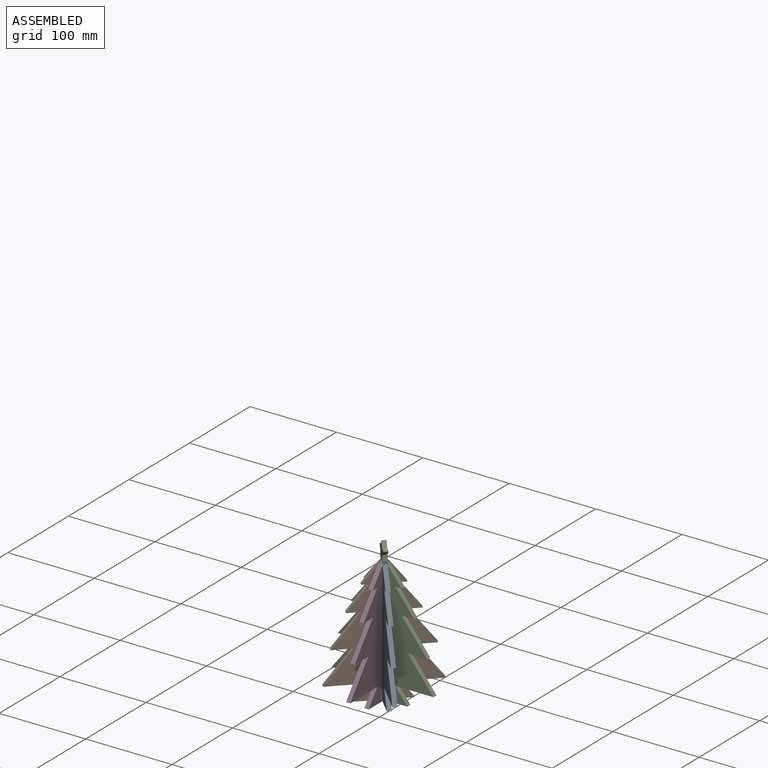
[diagram: assembled view]
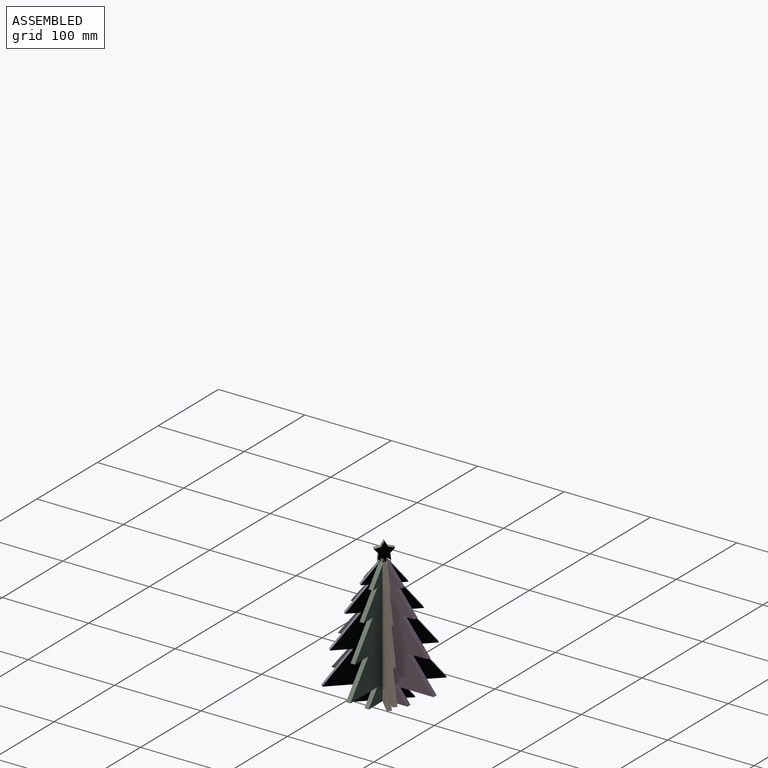
[diagram: assembled view, second angle]
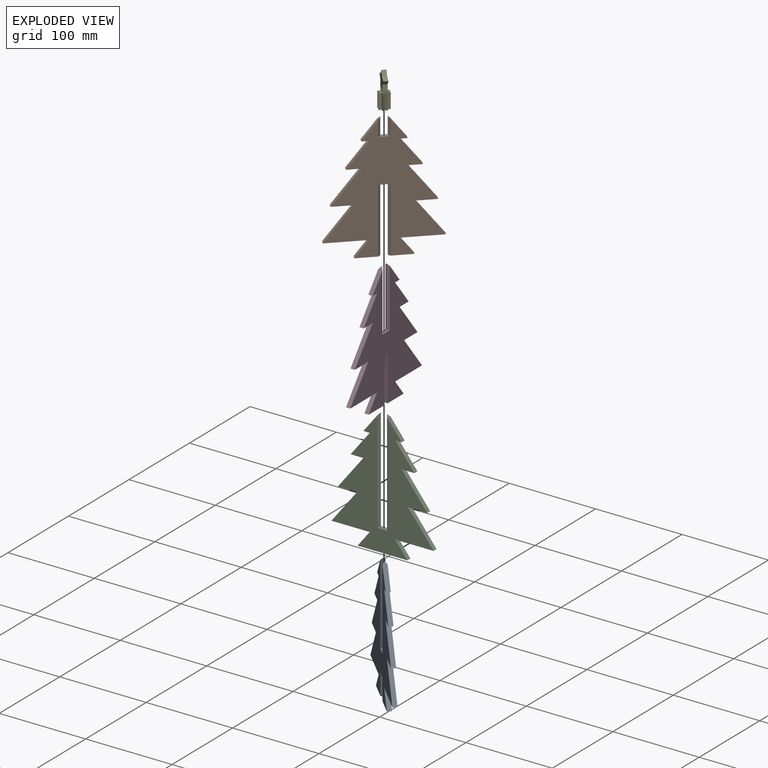
[diagram: exploded view]
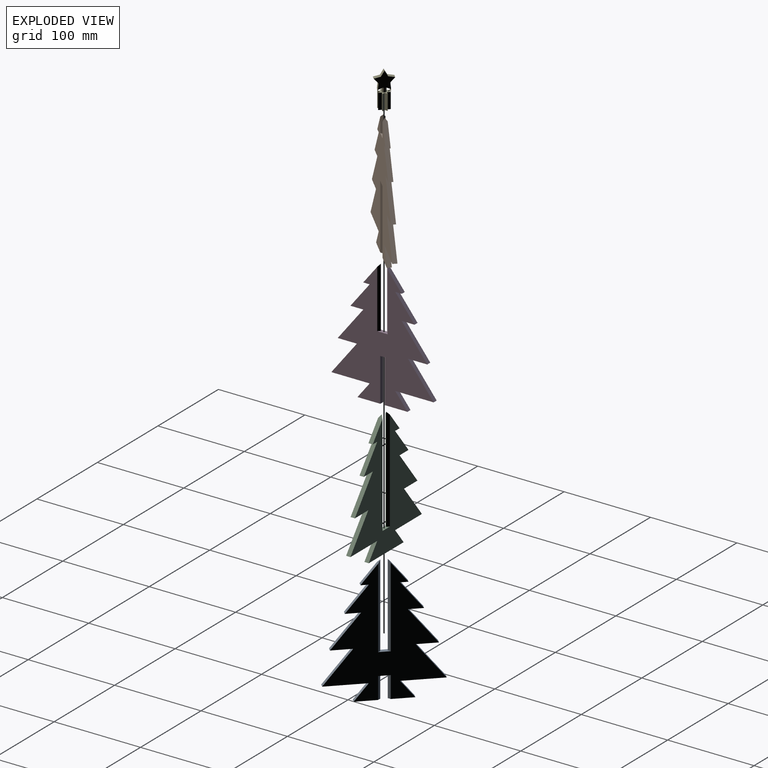
[diagram: exploded view, second angle]
ASSEMBLY  parts=5 mates=4
PART A: 32 faces, bbox 120x5x145.5 mm
  f0: plane 26.11x5mm, normal (0,0,-1), area 124.3mm2, adj f1,f2,f15,f28,f31
  f1: plane 142.43x120.02mm, normal (0,1,0), area 7661.5mm2, adj f0,f3,f4,f5,f6,f7,f8,f9
  f2: plane 142.43x120.02mm, normal (0,-1,0), area 7661.5mm2, adj f0,f3,f4,f5,f6,f7,f8,f9
  f3: plane 8.13x5mm, normal (0,0,-1), area 40.7mm2, adj f1,f2,f4,f21
  f4: plane 24.21x19.53mm, normal (0.78,0,0.63), area 145.6mm2, adj f1,f2,f3,f25,f26
  f5: plane 24.21x19.53mm, normal (-0.78,0,0.63), area 145.6mm2, adj f1,f2,f6,f23,f24
  f6: plane 8.13x5mm, normal (0,0,-1), area 40.7mm2, adj f1,f2,f5,f7
  f7: plane 28.68x23.13mm, normal (-0.78,0,0.63), area 184.2mm2, adj f1,f2,f6,f8
  f8: plane 15.63x5mm, normal (0,0,-1), area 78.2mm2, adj f1,f2,f7,f9
  f9: plane 37.2x30mm, normal (-0.78,0,0.63), area 239mm2, adj f1,f2,f8,f10
  f10: plane 22.5x5mm, normal (0,0,-1), area 112.5mm2, adj f1,f2,f9,f11
  f11: plane 37.2x30mm, normal (-0.78,0,0.63), area 239mm2, adj f1,f2,f10,f12
  f12: plane 45.01x5mm, normal (0,0,-1), area 225mm2, adj f1,f2,f11,f13
  f13: plane 18.24x14.72mm, normal (-0.78,0,0.63), area 117.2mm2, adj f1,f2,f12,f14
  f14: plane 26.11x5mm, normal (0,0,-1), area 124.3mm2, adj f1,f2,f13,f27,f30
  f15: plane 18.24x14.72mm, normal (0.78,0,0.63), area 117.2mm2, adj f0,f1,f2,f16
  f16: plane 45.01x5mm, normal (0,0,-1), area 225mm2, adj f1,f2,f15,f17
  f17: plane 37.2x30mm, normal (0.78,0,0.63), area 239mm2, adj f1,f2,f16,f18
  f18: plane 22.5x5mm, normal (0,0,-1), area 112.5mm2, adj f1,f2,f17,f19
  f19: plane 37.2x30mm, normal (0.78,0,0.63), area 239mm2, adj f1,f2,f18,f20
  f20: plane 15.63x5mm, normal (0,0,-1), area 78.2mm2, adj f1,f2,f19,f21
  f21: plane 28.68x23.13mm, normal (0.78,0,0.63), area 184.2mm2, adj f1,f2,f3,f20
  f22: plane 12.21x5mm, normal (0,0,1), area 48.6mm2, adj f1,f2,f23,f24,f25,f26
  f23: plane 95.53x2.5mm, normal (0.71,0.71,0), area 332.3mm2, adj f1,f5,f22,f24
  f24: plane 95.53x2.5mm, normal (0.71,-0.71,0), area 332.3mm2, adj f2,f5,f22,f23
  f25: plane 95.53x2.5mm, normal (-0.71,-0.71,0), area 332.3mm2, adj f2,f4,f22,f26
  f26: plane 95.53x2.5mm, normal (-0.71,0.71,0), area 332.3mm2, adj f1,f4,f22,f25
  f27: plane 25x2.5mm, normal (0.71,0.71,0), area 88.4mm2, adj f1,f14,f29,f30
  f28: plane 25x2.5mm, normal (-0.71,0.71,0), area 88.4mm2, adj f0,f1,f29,f31
  f29: plane 12.21x5mm, normal (0,0,-1), area 48.6mm2, adj f1,f2,f27,f28,f30,f31
  f30: plane 25x2.5mm, normal (0.71,-0.71,0), area 88.4mm2, adj f2,f14,f27,f29
  f31: plane 25x2.5mm, normal (-0.71,-0.71,0), area 88.4mm2, adj f0,f2,f28,f29
PART B: 32 faces, bbox 118.5x5x145.4 mm
  f0: plane 25.4x5mm, normal (0,0,-1), area 120.8mm2, adj f1,f2,f15,f28,f31
  f1: plane 142.25x118.53mm, normal (0,1,0), area 7855.6mm2, adj f0,f3,f4,f5,f6,f7,f8,f9
  f2: plane 142.25x118.53mm, normal (0,-1,0), area 7855.6mm2, adj f0,f3,f4,f5,f6,f7,f8,f9
  f3: plane 7.53x5mm, normal (0,0,-1), area 37.6mm2, adj f1,f2,f4,f21
  f4: plane 23.79x18.74mm, normal (0.79,0,0.62), area 141.3mm2, adj f1,f2,f3,f25,f26
  f5: plane 23.79x18.74mm, normal (-0.79,0,0.62), area 141.3mm2, adj f1,f2,f6,f23,f24
  f6: plane 7.53x5mm, normal (0,0,-1), area 37.6mm2, adj f1,f2,f5,f7
  f7: plane 28.37x22.35mm, normal (-0.79,0,0.62), area 180.6mm2, adj f1,f2,f6,f8
  f8: plane 14.94x5mm, normal (0,0,-1), area 74.7mm2, adj f1,f2,f7,f9
  f9: plane 37.62x29.63mm, normal (-0.79,0,0.62), area 239.4mm2, adj f1,f2,f8,f10
  f10: plane 22.22x5mm, normal (0,0,-1), area 111.1mm2, adj f1,f2,f9,f11
  f11: plane 37.62x29.63mm, normal (-0.79,0,0.62), area 239.4mm2, adj f1,f2,f10,f12
  f12: plane 44.45x5mm, normal (0,0,-1), area 222.2mm2, adj f1,f2,f11,f13
  f13: plane 18.02x14.19mm, normal (-0.79,0,0.62), area 114.7mm2, adj f1,f2,f12,f14
  f14: plane 25.4x5mm, normal (0,0,-1), area 120.8mm2, adj f1,f2,f13,f27,f30
  f15: plane 18.02x14.19mm, normal (0.79,0,0.62), area 114.7mm2, adj f0,f1,f2,f16
  f16: plane 44.45x5mm, normal (0,0,-1), area 222.2mm2, adj f1,f2,f15,f17
  f17: plane 37.62x29.63mm, normal (0.79,0,0.62), area 239.4mm2, adj f1,f2,f16,f18
  f18: plane 22.22x5mm, normal (0,0,-1), area 111.1mm2, adj f1,f2,f17,f19
  f19: plane 37.62x29.63mm, normal (0.79,0,0.62), area 239.4mm2, adj f1,f2,f18,f20
  f20: plane 14.94x5mm, normal (0,0,-1), area 74.7mm2, adj f1,f2,f19,f21
  f21: plane 28.37x22.35mm, normal (0.79,0,0.62), area 180.6mm2, adj f1,f2,f3,f20
  f22: plane 12.21x5mm, normal (0,0,1), area 48.6mm2, adj f1,f2,f23,f24,f25,f26
  f23: plane 20.42x2.5mm, normal (0.71,0.71,0), area 66.6mm2, adj f1,f5,f22,f24
  f24: plane 20.42x2.5mm, normal (0.71,-0.71,0), area 66.6mm2, adj f2,f5,f22,f23
  f25: plane 20.42x2.5mm, normal (-0.71,-0.71,0), area 66.6mm2, adj f2,f4,f22,f26
  f26: plane 20.42x2.5mm, normal (-0.71,0.71,0), area 66.6mm2, adj f1,f4,f22,f25
  f27: plane 75x2.5mm, normal (0.71,0.71,0), area 265.2mm2, adj f1,f14,f29,f30
  f28: plane 75x2.5mm, normal (-0.71,0.71,0), area 265.2mm2, adj f0,f1,f29,f31
  f29: plane 12.21x5mm, normal (0,0,-1), area 48.6mm2, adj f1,f2,f27,f28,f30,f31
  f30: plane 75x2.5mm, normal (0.71,-0.71,0), area 265.2mm2, adj f2,f14,f27,f29
  f31: plane 75x2.5mm, normal (-0.71,-0.71,0), area 265.2mm2, adj f0,f2,f28,f29
PART C: 26 faces, bbox 118.2x5x145.4 mm
  f0: plane 23.69x18.55mm, normal (0.79,0,0.62), area 140.3mm2, adj f1,f2,f20,f24,f25
  f1: plane 142.2x118.17mm, normal (0,-1,0), area 7523.5mm2, adj f0,f2,f3,f4,f5,f6,f7,f8
  f2: plane 7.39x5mm, normal (0,0,-1), area 36.9mm2, adj f0,f1,f19,f20
  f3: plane 23.69x18.55mm, normal (-0.79,0,0.62), area 140.3mm2, adj f1,f4,f20,f22,f23
  f4: plane 7.39x5mm, normal (0,0,-1), area 36.9mm2, adj f1,f3,f5,f20
  f5: plane 28.29x22.16mm, normal (-0.79,0,0.62), area 179.7mm2, adj f1,f4,f6,f20
  f6: plane 14.77x5mm, normal (0,0,-1), area 73.9mm2, adj f1,f5,f7,f20
  f7: plane 37.73x29.54mm, normal (-0.79,0,0.62), area 239.6mm2, adj f1,f6,f8,f20
  f8: plane 22.16x5mm, normal (0,0,-1), area 110.8mm2, adj f1,f7,f9,f20
  f9: plane 37.73x29.54mm, normal (-0.79,0,0.62), area 239.6mm2, adj f1,f8,f10,f20
  f10: plane 44.31x5mm, normal (0,0,-1), area 221.6mm2, adj f1,f9,f11,f20
  f11: plane 17.96x14.07mm, normal (-0.79,0,0.62), area 114.1mm2, adj f1,f10,f12,f20
  f12: plane 57.67x5mm, normal (0,0,-1), area 288.4mm2, adj f1,f11,f13,f20
  f13: plane 17.96x14.07mm, normal (0.79,0,0.62), area 114.1mm2, adj f1,f12,f14,f20
  f14: plane 44.31x5mm, normal (0,0,-1), area 221.6mm2, adj f1,f13,f15,f20
  f15: plane 37.73x29.54mm, normal (0.79,0,0.62), area 239.6mm2, adj f1,f14,f16,f20
  f16: plane 22.16x5mm, normal (0,0,-1), area 110.8mm2, adj f1,f15,f17,f20
  f17: plane 37.73x29.54mm, normal (0.79,0,0.62), area 239.6mm2, adj f1,f16,f18,f20
  f18: plane 14.77x5mm, normal (0,0,-1), area 73.9mm2, adj f1,f17,f19,f20
  f19: plane 28.29x22.16mm, normal (0.79,0,0.62), area 179.7mm2, adj f1,f2,f18,f20
  f20: plane 142.2x118.17mm, normal (0,1,0), area 7523.5mm2, adj f0,f2,f3,f4,f5,f6,f7,f8
  f21: plane 12.21x5mm, normal (0,0,1), area 48.6mm2, adj f1,f20,f22,f23,f24,f25
  f22: plane 120.39x2.5mm, normal (0.71,0.71,0), area 420mm2, adj f3,f20,f21,f23
  f23: plane 120.39x2.5mm, normal (0.71,-0.71,0), area 420mm2, adj f1,f3,f21,f22
  f24: plane 120.39x2.5mm, normal (-0.71,-0.71,0), area 420mm2, adj f0,f1,f21,f25
  f25: plane 120.39x2.5mm, normal (-0.71,0.71,0), area 420mm2, adj f0,f20,f21,f24
PART D: 30 faces, bbox 118.4x5x145.4 mm
  f0: plane 26.41x5mm, normal (0,0,-1), area 132mm2, adj f1,f12,f21,f27
  f1: plane 142.23x118.42mm, normal (0,-1,0), area 7897.7mm2, adj f0,f2,f3,f4,f5,f6,f7,f8
  f2: plane 7.49x5mm, normal (0,0,-1), area 37.4mm2, adj f1,f3,f20,f21
  f3: plane 23.76x18.68mm, normal (0.79,0,0.62), area 141mm2, adj f1,f2,f21,f25,f26
  f4: plane 23.76x18.68mm, normal (-0.79,0,0.62), area 141mm2, adj f1,f5,f21,f23,f24
  f5: plane 7.49x5mm, normal (0,0,-1), area 37.4mm2, adj f1,f4,f6,f21
  f6: plane 28.35x22.29mm, normal (-0.79,0,0.62), area 180.3mm2, adj f1,f5,f7,f21
  f7: plane 14.89x5mm, normal (0,0,-1), area 74.4mm2, adj f1,f6,f8,f21
  f8: plane 37.65x29.6mm, normal (-0.79,0,0.62), area 239.5mm2, adj f1,f7,f9,f21
  f9: plane 22.2x5mm, normal (0,0,-1), area 111mm2, adj f1,f8,f10,f21
  f10: plane 37.65x29.6mm, normal (-0.79,0,0.62), area 239.5mm2, adj f1,f9,f11,f21
  f11: plane 44.41x5mm, normal (0,0,-1), area 222mm2, adj f1,f10,f12,f21
  f12: plane 18x14.15mm, normal (-0.79,0,0.62), area 114.5mm2, adj f0,f1,f11,f21
  f13: plane 26.41x5mm, normal (0,0,-1), area 132mm2, adj f1,f14,f21,f28
  f14: plane 18x14.15mm, normal (0.79,0,0.62), area 114.5mm2, adj f1,f13,f15,f21
  f15: plane 44.41x5mm, normal (0,0,-1), area 222mm2, adj f1,f14,f16,f21
  f16: plane 37.65x29.6mm, normal (0.79,0,0.62), area 239.5mm2, adj f1,f15,f17,f21
  f17: plane 22.2x5mm, normal (0,0,-1), area 111mm2, adj f1,f16,f18,f21
  f18: plane 37.65x29.6mm, normal (0.79,0,0.62), area 239.5mm2, adj f1,f17,f19,f21
  f19: plane 14.89x5mm, normal (0,0,-1), area 74.4mm2, adj f1,f18,f20,f21
  f20: plane 28.35x22.29mm, normal (0.79,0,0.62), area 180.3mm2, adj f1,f2,f19,f21
  f21: plane 142.23x118.42mm, normal (0,1,0), area 7897.7mm2, adj f0,f2,f3,f4,f5,f6,f7,f8
  f22: plane 12.21x5mm, normal (0,0,1), area 48.6mm2, adj f1,f21,f23,f24,f25,f26
  f23: plane 70.41x2.5mm, normal (0.71,0.71,0), area 243.3mm2, adj f4,f21,f22,f24
  f24: plane 70.41x2.5mm, normal (0.71,-0.71,0), area 243.3mm2, adj f1,f4,f22,f23
  f25: plane 70.41x2.5mm, normal (-0.71,-0.71,0), area 243.3mm2, adj f1,f3,f22,f26
  f26: plane 70.41x2.5mm, normal (-0.71,0.71,0), area 243.3mm2, adj f3,f21,f22,f25
  f27: plane 50x5mm, normal (1,0,0), area 250mm2, adj f0,f1,f21,f29
  f28: plane 50x5mm, normal (-1,0,0), area 250mm2, adj f1,f13,f21,f29
  f29: plane 5.1x5mm, normal (0,0,-1), area 25.5mm2, adj f1,f21,f27,f28
PART E: 53 faces, bbox 20.7x12.1x40.6 mm
  f0: plane 18x2.5mm, normal (0.71,0.71,0), area 63.6mm2, adj f1,f2,f4,f9,f21,f38,f39,f40
  f1: plane 18x2.5mm, normal (0.71,-0.71,0), area 63.6mm2, adj f0,f2,f3,f14,f21,f38,f39,f40
  f2: plane 11.85x11.59mm, normal (0,0,1), area 46.9mm2, adj f0,f1,f8,f19,f20,f37,f39,f41
  f3: plane 0.01x0.01mm, normal (0,0,1), area 0mm2, adj f1,f14,f40
  f4: plane 0.01x0.01mm, normal (0,0,1), area 0mm2, adj f0,f9,f40
  f5: plane 5x4.3mm, normal (0.41,0,-0.91), area 22.4mm2, adj f8,f9,f14,f23,f24,f37
  f6: plane 0.01x0.01mm, normal (0,0,1), area 0mm2, adj f9,f20,f36
  f7: plane 0.01x0.01mm, normal (0,0,1), area 0mm2, adj f14,f19,f36
  f8: cylinder r=2.5mm len=5mm, axis (0,0,-1), area 76.1mm2, adj f2,f5,f22,f23,f24,f27,f28
  f9: plane 40.63x20.69mm, normal (0,-1,0), area 319.4mm2, adj f0,f4,f5,f6,f10,f13,f20,f21
  f10: plane 17.9x3.54mm, normal (-1,0,0), area 63.3mm2, adj f9,f11,f21,f51
  f11: plane 17.9x2.5mm, normal (0.71,-0.71,0), area 63.3mm2, adj f10,f12,f21,f50
  f12: plane 17.9x2.5mm, normal (-0.71,-0.71,0), area 63.3mm2, adj f11,f13,f21,f49
  f13: plane 17.9x3.54mm, normal (1,0,0), area 63.3mm2, adj f9,f12,f21,f48
  f14: plane 40.63x20.69mm, normal (0,1,0), area 319.4mm2, adj f1,f3,f5,f7,f15,f18,f19,f21
  f15: plane 17.9x3.54mm, normal (1,0,0), area 63.3mm2, adj f14,f16,f21,f42
  f16: plane 17.9x2.5mm, normal (-0.71,0.71,0), area 63.3mm2, adj f15,f17,f21,f43
  f17: plane 17.9x2.5mm, normal (0.71,0.71,0), area 63.3mm2, adj f16,f18,f21,f44
  f18: plane 17.9x3.54mm, normal (-1,0,0), area 63.3mm2, adj f14,f17,f21,f45
  f19: plane 18x2.5mm, normal (-0.71,-0.71,0), area 63.6mm2, adj f2,f7,f14,f20,f21,f35,f36,f37
  f20: plane 18x2.5mm, normal (-0.71,0.71,0), area 63.6mm2, adj f2,f6,f9,f19,f21,f35,f36,f37
  f21: plane 12.07x12.07mm, normal (0,0,-1), area 70.7mm2, adj f0,f1,f9,f10,f11,f12,f13,f14
  f22: plane 2x1mm, normal (0,0,-1), area 0.6mm2, adj f8,f14,f28
  f23: plane 2x1mm, normal (0,0,-1), area 0.6mm2, adj f5,f8,f14
  f24: plane 2x1mm, normal (0,0,-1), area 0.6mm2, adj f5,f8,f9
  f25: plane 5.2x5mm, normal (-0.74,0,-0.67), area 35mm2, adj f9,f14,f26,f34
  f26: plane 6.96x5mm, normal (-0.99,0,0.1), area 35mm2, adj f9,f14,f25,f36
  f27: plane 2x1mm, normal (0,0,-1), area 0.6mm2, adj f8,f9,f28
  f28: plane 5x4.3mm, normal (-0.41,0,-0.91), area 22.4mm2, adj f8,f9,f14,f22,f27,f39
  f29: plane 6.96x5mm, normal (0.99,0,0.1), area 35mm2, adj f9,f14,f30,f40
  f30: plane 5.2x5mm, normal (0.74,0,-0.67), area 35mm2, adj f9,f14,f29,f31
  f31: plane 6.85x5mm, normal (0.21,0,0.98), area 35mm2, adj f9,f14,f30,f32
  f32: plane 6.06x5mm, normal (0.87,0,0.5), area 35mm2, adj f9,f14,f31,f33
  f33: plane 6.06x5mm, normal (-0.87,0,0.5), area 35mm2, adj f9,f14,f32,f34
  f34: plane 6.85x5mm, normal (-0.21,0,0.98), area 35mm2, adj f9,f14,f25,f33
  f35: plane 4.97x0.1mm, normal (0,0,-1), area 0.5mm2, adj f19,f20,f36,f37
  f36: plane 5x3mm, normal (-0.99,0,-0.12), area 15.1mm2, adj f6,f7,f9,f14,f19,f20,f26,f35
  f37: plane 5.01x3.1mm, normal (0.99,0,0.12), area 15.3mm2, adj f2,f5,f9,f14,f19,f20,f35,f46
  f38: plane 4.97x0.1mm, normal (0,0,-1), area 0.5mm2, adj f0,f1,f39,f40
  f39: plane 5.01x3.1mm, normal (-0.99,0,0.12), area 15.3mm2, adj f0,f1,f2,f9,f14,f28,f38,f41
  f40: plane 5x3mm, normal (0.99,0,-0.12), area 15.1mm2, adj f0,f1,f3,f4,f9,f14,f29,f38
  f41: cylinder r=0.1mm len=3.53mm, axis (1,0,0), area 0.5mm2, adj f2,f14,f39,f42
  f42: cylinder r=0.1mm len=3.64mm, axis (0,-1,0), area 0.5mm2, adj f2,f15,f41,f43
  f43: cylinder r=0.1mm len=2.64mm, axis (0.71,0.71,0), area 0.5mm2, adj f2,f16,f42,f44
  f44: cylinder r=0.1mm len=2.64mm, axis (0.71,-0.71,0), area 0.5mm2, adj f2,f17,f43,f45
  f45: cylinder r=0.1mm len=3.64mm, axis (0,1,0), area 0.5mm2, adj f2,f18,f44,f46
  f46: cylinder r=0.1mm len=3.53mm, axis (1,0,0), area 0.5mm2, adj f2,f14,f37,f45
  f47: cylinder r=0.1mm len=3.53mm, axis (-1,0,0), area 0.5mm2, adj f2,f9,f39,f48
  f48: cylinder r=0.1mm len=3.64mm, axis (0,-1,0), area 0.5mm2, adj f2,f13,f47,f49
  f49: cylinder r=0.1mm len=2.64mm, axis (-0.71,0.71,0), area 0.5mm2, adj f2,f12,f48,f50
  f50: cylinder r=0.1mm len=2.64mm, axis (-0.71,-0.71,0), area 0.5mm2, adj f2,f11,f49,f51
  f51: cylinder r=0.1mm len=3.64mm, axis (0,1,0), area 0.5mm2, adj f2,f10,f50,f52
  f52: cylinder r=0.1mm len=3.53mm, axis (-1,0,0), area 0.5mm2, adj f2,f9,f37,f51
PLACE A rot(axis=(0,0,1),135deg) t=(-17.86,28.74,-13)mm
PLACE B rot(axis=(0,0,-1),135deg) t=(-14.33,28.74,-13)mm
PLACE C t=(-16.09,33.01,-13)mm fixed
PLACE D rot(axis=(0,0,1),90deg) t=(-18.59,30.51,-13)mm
PLACE E rot(axis=(0,0,-1),45deg) t=(-16.09,30.51,112)mm
MATE revolute E.f8 <-> B.f22  axis (0,0,-1) through (-16.09,30.51,112)mm
MATE revolute B.f29 <-> D.f22  axis (0,0,-1) through (-16.09,30.51,62)mm
MATE revolute C.f21 <-> A.f29  axis (0,0,1) through (-16.09,30.51,12)mm
MATE revolute A.f22 <-> D.f29  axis (0,0,1) through (-16.09,30.51,37)mm
